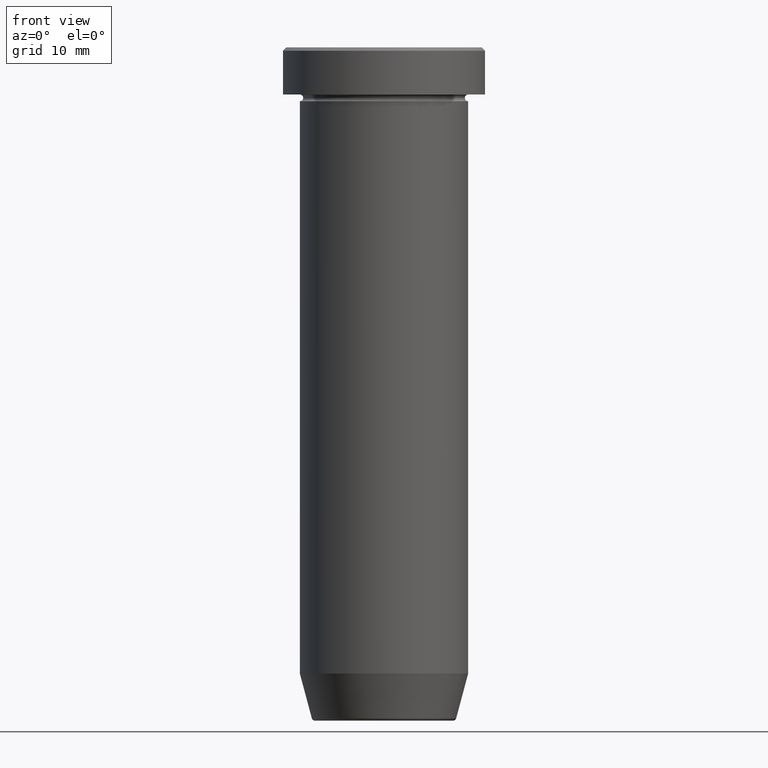
[diagram: clean part render]
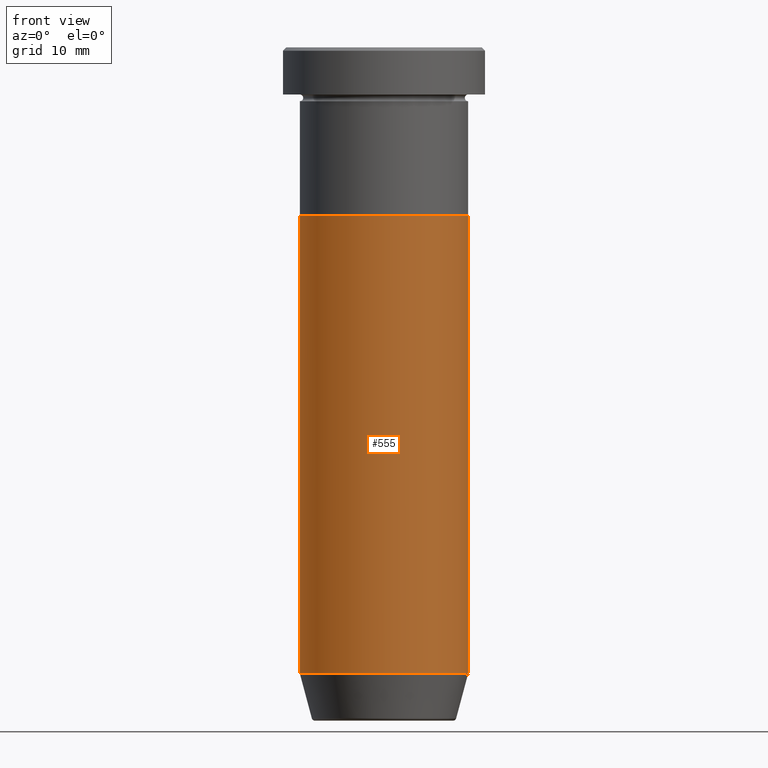
[diagram: same view with one face highlighted and labeled with its STEP entity id]
A machine part, front view. The second image highlights one B-rep face of the part: STEP entity #555.
In plain terms, the highlighted cylindrical surface (partial cylindrical patch) has radius 12.5 mm, axis along (-0, -0, 1).
Its self-contained STEP definition (entity closure, byte-faithful):
#3 = CARTESIAN_POINT ( 'NONE',  ( -12.50000000000000000, 1.530808498934191521E-15, -93.00000000000000000 ) ) ;
#5 = VECTOR ( 'NONE', #48, 1000.000000000000000 ) ;
#7 = CARTESIAN_POINT ( 'NONE',  ( -12.50000000000000000, 1.530808498934191521E-15, 0.000000000000000000 ) ) ;
#28 = DIRECTION ( 'NONE',  ( -0.000000000000000000, -0.000000000000000000, 1.000000000000000000 ) ) ;
#33 = CYLINDRICAL_SURFACE ( 'NONE', #343, 12.50000000000000000 ) ;
#34 = ORIENTED_EDGE ( 'NONE', *, *, #333, .F. ) ;
#48 = DIRECTION ( 'NONE',  ( -0.000000000000000000, -0.000000000000000000, 1.000000000000000000 ) ) ;
#55 = ORIENTED_EDGE ( 'NONE', *, *, #435, .F. ) ;
#56 = VERTEX_POINT ( 'NONE', #267 ) ;
#71 = DIRECTION ( 'NONE',  ( -0.000000000000000000, -0.000000000000000000, 1.000000000000000000 ) ) ;
#78 = CIRCLE ( 'NONE', #549, 12.50000000000000000 ) ;
#130 = CARTESIAN_POINT ( 'NONE',  ( 0.000000000000000000, 0.000000000000000000, 0.000000000000000000 ) ) ;
#131 = CARTESIAN_POINT ( 'NONE',  ( 12.50000000000000000, 0.000000000000000000, 0.000000000000000000 ) ) ;
#171 = CIRCLE ( 'NONE', #559, 12.50000000000000000 ) ;
#176 = FACE_OUTER_BOUND ( 'NONE', #204, .T. ) ;
#182 = DIRECTION ( 'NONE',  ( -0.000000000000000000, -0.000000000000000000, 1.000000000000000000 ) ) ;
#188 = LINE ( 'NONE', #7, #5 ) ;
#204 = EDGE_LOOP ( 'NONE', ( #34, #311, #598, #55 ) ) ;
#218 = DIRECTION ( 'NONE',  ( 1.000000000000000000, 0.000000000000000000, 0.000000000000000000 ) ) ;
#223 = DIRECTION ( 'NONE',  ( -0.000000000000000000, -0.000000000000000000, 1.000000000000000000 ) ) ;
#246 = CARTESIAN_POINT ( 'NONE',  ( -12.50000000000000000, 1.530808498934191521E-15, -25.00000000000000000 ) ) ;
#256 = EDGE_CURVE ( 'NONE', #526, #56, #462, .T. ) ;
#257 = CARTESIAN_POINT ( 'NONE',  ( 12.50000000000000000, 0.000000000000000000, -93.00000000000000000 ) ) ;
#267 = CARTESIAN_POINT ( 'NONE',  ( 12.50000000000000000, 0.000000000000000000, -25.00000000000000000 ) ) ;
#311 = ORIENTED_EDGE ( 'NONE', *, *, #493, .T. ) ;
#320 = VERTEX_POINT ( 'NONE', #3 ) ;
#326 = DIRECTION ( 'NONE',  ( 1.000000000000000000, 0.000000000000000000, 0.000000000000000000 ) ) ;
#333 = EDGE_CURVE ( 'NONE', #320, #347, #188, .T. ) ;
#343 = AXIS2_PLACEMENT_3D ( 'NONE', #130, #223, #326 ) ;
#347 = VERTEX_POINT ( 'NONE', #246 ) ;
#363 = DIRECTION ( 'NONE',  ( 1.000000000000000000, 0.000000000000000000, 0.000000000000000000 ) ) ;
#409 = CARTESIAN_POINT ( 'NONE',  ( 0.000000000000000000, 0.000000000000000000, -25.00000000000000000 ) ) ;
#435 = EDGE_CURVE ( 'NONE', #347, #56, #78, .T. ) ;
#462 = LINE ( 'NONE', #131, #599 ) ;
#493 = EDGE_CURVE ( 'NONE', #320, #526, #171, .T. ) ;
#526 = VERTEX_POINT ( 'NONE', #257 ) ;
#549 = AXIS2_PLACEMENT_3D ( 'NONE', #409, #71, #363 ) ;
#555 = ADVANCED_FACE ( 'NONE', ( #176 ), #33, .T. ) ;
#559 = AXIS2_PLACEMENT_3D ( 'NONE', #581, #28, #218 ) ;
#581 = CARTESIAN_POINT ( 'NONE',  ( 0.000000000000000000, 0.000000000000000000, -93.00000000000000000 ) ) ;
#598 = ORIENTED_EDGE ( 'NONE', *, *, #256, .T. ) ;
#599 = VECTOR ( 'NONE', #182, 1000.000000000000000 ) ;